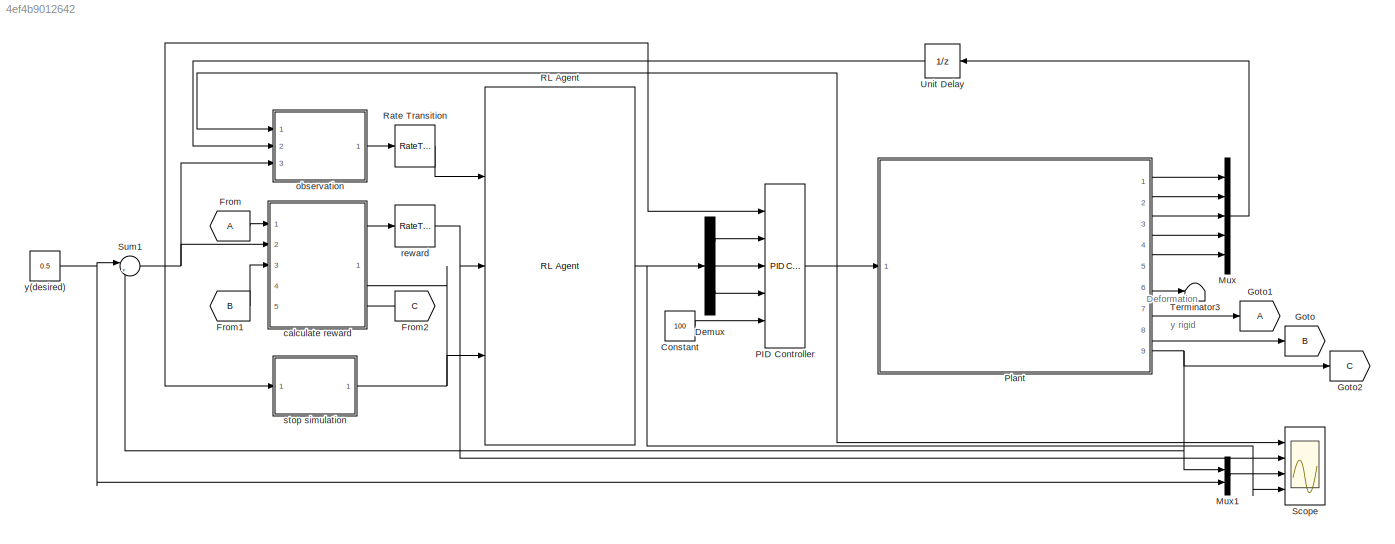
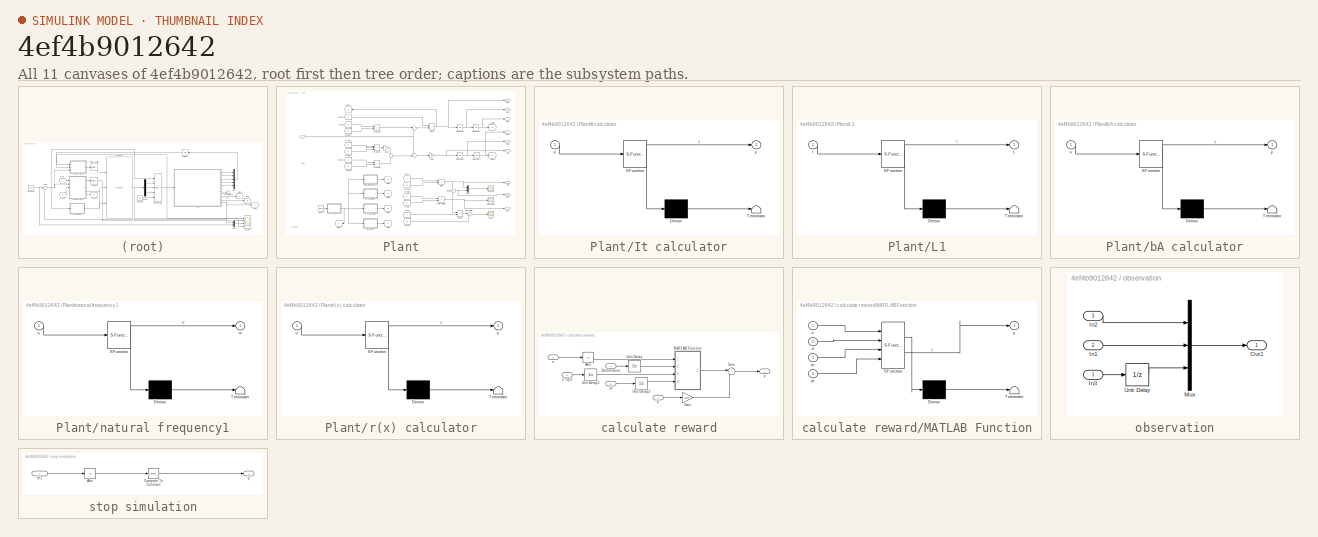
[diagram: thumbnail index - all 11 canvases of the model, root first then tree order]
MODEL slx_4ef4b9012642
KIND model
CONFIG AbsTol = auto
CONFIG EnableMultiTasking = off
CONFIG FixedStep = 0.001
CONFIG InitFcn = ro = 0.1 ; \n\nKu = 9;\nTu = 4;\nKpmin = 0.32*Ku;\nKpmax = 0.6*Ku;\nKdmin = 0.08*Ku*Tu;\nKdmax = 0.15*Ku*Tu;
CONFIG MaxStep = 0.001
CONFIG MinStep = auto
CONFIG RelTol = 1e-3
CONFIG SampleTimeConstraint = Unconstrained
CONFIG SolverName = VariableStepAuto
CONFIG StartTime = 0.0
CONFIG StopTime = 10
BLOCK [Constant] Constant
  Value = 100
BLOCK [Demux] Demux
  Outputs = 3
  Ports = [1, 3]
BLOCK [From] From
BLOCK [From] From1
  GotoTag = B
BLOCK [From] From2
  GotoTag = C
  NameLocation = top
BLOCK [Goto] Goto
  GotoTag = B
BLOCK [Goto] Goto1
BLOCK [Goto] Goto2
  GotoTag = C
BLOCK [Mux] Mux
  DisplayOption = bar
  Inputs = 5
  Ports = [5, 1]
BLOCK [Mux] Mux1
  DisplayOption = bar
  Inputs = 2
  Ports = [2, 1]
BLOCK [Reference] PID Controller  REF=slpidlib/PID Controller
  Ports = [5, 1]
  SourceBlock = slpidlib/PID Controller
  SourceProductBaseCode = SL
  SourceType = PID 1dof
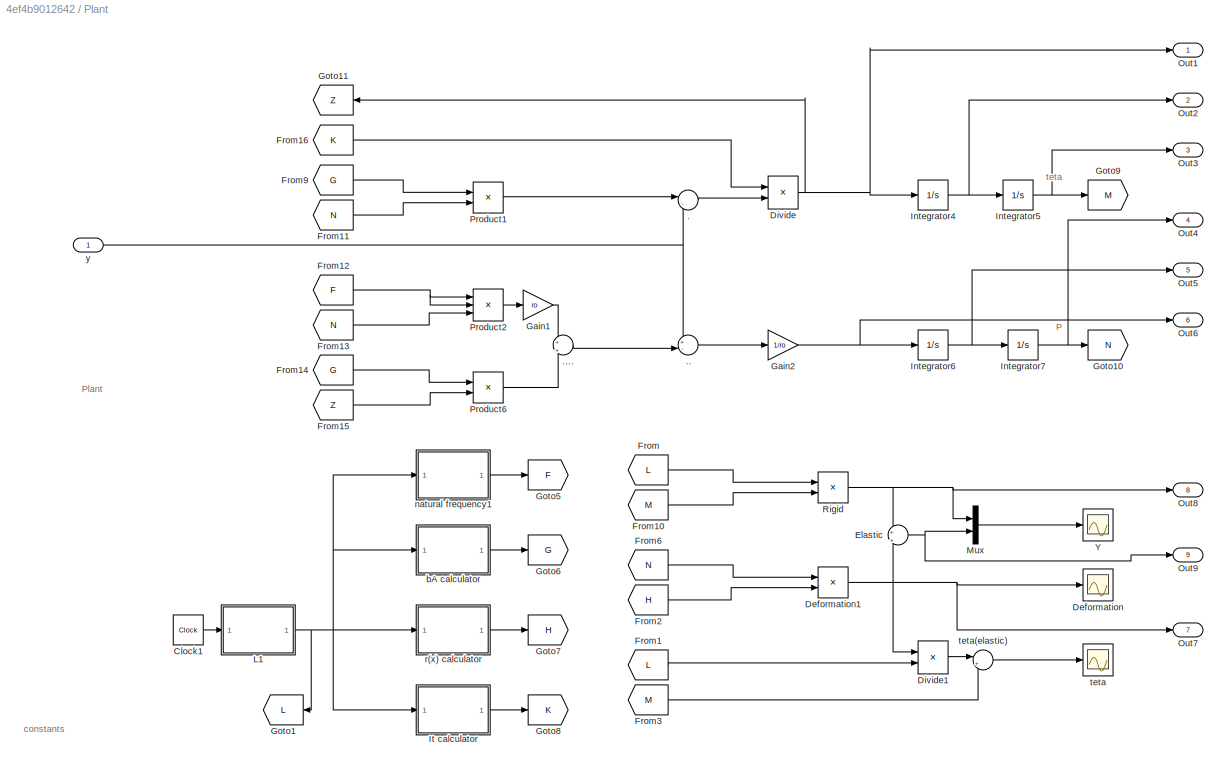
BLOCK [SubSystem] Plant
  Ports = [1, 9]
  RequestExecContextInheritance = off
BLOCK [Sum] Plant/.
  Inputs = |-+
  Ports = [2, 1]
BLOCK [Sum] Plant/..
  Inputs = +-|
  Ports = [2, 1]
BLOCK [Sum] Plant/....
  Inputs = +|+
  Ports = [2, 1]
BLOCK [Clock] Plant/Clock1
  Decimation = 2
  DisplayTime = on
BLOCK [Scope] Plant/Deformation
  Floating = off
  NumInputPorts = 1
  Ports = [1]
  ScopeSpecificationString = Simulink.scopes.TimeScopeBlockCfg('CurrentConfiguration', extmgr.ConfigurationSet(extmgr.Configuration('Core','General UI',true),extmgr.Configuration('Core','Source UI',true),extmgr.Configuration('Sources','WiredSimulink',true),extmgr.Configuration('Visuals','Time Domain',true,'SerializedDisplays',{struct('MinYLimReal','-0.75331','MaxYLimReal','0.82141','YLabelReal','','MinYLimMag','0.00000','MaxY...<+1409ch>
BLOCK [Product] Plant/Deformation1
  Ports = [2, 1]
BLOCK [Product] Plant/Divide
  Inputs = /*
  Ports = [2, 1]
BLOCK [Product] Plant/Divide1
  Inputs = */
  Ports = [2, 1]
BLOCK [Sum] Plant/Elastic
  Inputs = +|+
  NameLocation = left
  Ports = [2, 1]
BLOCK [From] Plant/From
  GotoTag = L
BLOCK [From] Plant/From1
  GotoTag = L
BLOCK [From] Plant/From10
  GotoTag = M
BLOCK [From] Plant/From11
  GotoTag = N
BLOCK [From] Plant/From12
  GotoTag = F
BLOCK [From] Plant/From13
  GotoTag = N
BLOCK [From] Plant/From14
  GotoTag = G
BLOCK [From] Plant/From15
  GotoTag = Z
BLOCK [From] Plant/From16
  GotoTag = K
BLOCK [From] Plant/From2
  GotoTag = H
BLOCK [From] Plant/From3
  GotoTag = M
BLOCK [From] Plant/From6
  GotoTag = N
BLOCK [From] Plant/From9
  GotoTag = G
BLOCK [Gain] Plant/Gain1
  Gain = ro
BLOCK [Gain] Plant/Gain2
  Gain = 1/ro
BLOCK [Goto] Plant/Goto1
  GotoTag = L
  NameLocation = top
BLOCK [Goto] Plant/Goto10
  GotoTag = N
BLOCK [Goto] Plant/Goto11
  GotoTag = Z
  NameLocation = top
BLOCK [Goto] Plant/Goto5
  GotoTag = F
BLOCK [Goto] Plant/Goto6
  GotoTag = G
BLOCK [Goto] Plant/Goto7
  GotoTag = H
BLOCK [Goto] Plant/Goto8
  GotoTag = K
BLOCK [Goto] Plant/Goto9
  GotoTag = M
BLOCK [Integrator] Plant/Integrator4
  Ports = [1, 1]
BLOCK [Integrator] Plant/Integrator5
  Ports = [1, 1]
BLOCK [Integrator] Plant/Integrator6
  Ports = [1, 1]
BLOCK [Integrator] Plant/Integrator7
  Ports = [1, 1]
BLOCK [SubSystem] Plant/It calculator
  ErrorFcn = Stateflow.Translate.translate
  PermitHierarchicalResolution = ExplicitOnly
  Ports = [1, 1]
  RequestExecContextInheritance = off
  SFBlockType = MATLAB Function
  TreatAsAtomicUnit = on
BLOCK [Demux] Plant/It calculator/ Demux 
  Outputs = 1
  Ports = [1, 1]
BLOCK [S-Function] Plant/It calculator/ SFunction 
  EnableBusSupport = on
  FunctionName = sf_sfun
  PortCounts = [1 2]
  Ports = [1, 2]
  SFcnIsStateOwnerBlock = off
  SFunctionDeploymentMode = off
  Tag = Stateflow S-Function 5
BLOCK [Terminator] Plant/It calculator/ Terminator 
BLOCK [Inport] Plant/It calculator/u
BLOCK [Outport] Plant/It calculator/y
BLOCK [SubSystem] Plant/L1
  ErrorFcn = Stateflow.Translate.translate
  PermitHierarchicalResolution = ExplicitOnly
  Ports = [1, 1]
  RequestExecContextInheritance = off
  SFBlockType = MATLAB Function
  TreatAsAtomicUnit = on
BLOCK [Demux] Plant/L1/ Demux 
  Outputs = 1
  Ports = [1, 1]
BLOCK [S-Function] Plant/L1/ SFunction 
  EnableBusSupport = on
  FunctionName = sf_sfun
  PortCounts = [1 2]
  Ports = [1, 2]
  SFcnIsStateOwnerBlock = off
  SFunctionDeploymentMode = off
  Tag = Stateflow S-Function 6
BLOCK [Terminator] Plant/L1/ Terminator 
BLOCK [Outport] Plant/L1/L
BLOCK [Inport] Plant/L1/t
BLOCK [Mux] Plant/Mux
  DisplayOption = bar
  Inputs = 2
  Ports = [2, 1]
BLOCK [Outport] Plant/Out1
BLOCK [Outport] Plant/Out2
  Port = 2
BLOCK [Outport] Plant/Out3
  Port = 3
BLOCK [Outport] Plant/Out4
  Port = 4
BLOCK [Outport] Plant/Out5
  Port = 5
BLOCK [Outport] Plant/Out6
  Port = 6
BLOCK [Outport] Plant/Out7
  Port = 7
BLOCK [Outport] Plant/Out8
  Port = 8
BLOCK [Outport] Plant/Out9
  Port = 9
BLOCK [Product] Plant/Product1
  Ports = [2, 1]
BLOCK [Product] Plant/Product2
  Inputs = 3
  Ports = [3, 1]
BLOCK [Product] Plant/Product6
  Ports = [2, 1]
BLOCK [Product] Plant/Rigid
  Ports = [2, 1]
BLOCK [Scope] Plant/Y
  Floating = off
  NumInputPorts = 1
  Ports = [1]
  ScopeSpecificationString = Simulink.scopes.TimeScopeBlockCfg('CurrentConfiguration', extmgr.ConfigurationSet(extmgr.Configuration('Core','General UI',true),extmgr.Configuration('Core','Source UI',true),extmgr.Configuration('Sources','WiredSimulink',true,'DataLoggingVariableName','ScopeData1'),extmgr.Configuration('Visuals','Time Domain',true,'SerializedDisplays',{struct('MinYLimReal','-0.25711','MaxYLimReal','1.56994','YLab...<+1450ch>
BLOCK [SubSystem] Plant/bA calculator
  ErrorFcn = Stateflow.Translate.translate
  PermitHierarchicalResolution = ExplicitOnly
  Ports = [1, 1]
  RequestExecContextInheritance = off
  SFBlockType = MATLAB Function
  TreatAsAtomicUnit = on
BLOCK [Demux] Plant/bA calculator/ Demux 
  Outputs = 1
  Ports = [1, 1]
BLOCK [S-Function] Plant/bA calculator/ SFunction 
  EnableBusSupport = on
  FunctionName = sf_sfun
  PortCounts = [1 2]
  Ports = [1, 2]
  SFcnIsStateOwnerBlock = off
  SFunctionDeploymentMode = off
  Tag = Stateflow S-Function 7
BLOCK [Terminator] Plant/bA calculator/ Terminator 
BLOCK [Inport] Plant/bA calculator/u
BLOCK [Outport] Plant/bA calculator/y
BLOCK [SubSystem] Plant/natural frequency1
  ErrorFcn = Stateflow.Translate.translate
  PermitHierarchicalResolution = ExplicitOnly
  Ports = [1, 1]
  RequestExecContextInheritance = off
  SFBlockType = MATLAB Function
  TreatAsAtomicUnit = on
BLOCK [Demux] Plant/natural frequency1/ Demux 
  Outputs = 1
  Ports = [1, 1]
BLOCK [S-Function] Plant/natural frequency1/ SFunction 
  EnableBusSupport = on
  FunctionName = sf_sfun
  PortCounts = [1 2]
  Ports = [1, 2]
  SFcnIsStateOwnerBlock = off
  SFunctionDeploymentMode = off
  Tag = Stateflow S-Function 8
BLOCK [Terminator] Plant/natural frequency1/ Terminator 
BLOCK [Inport] Plant/natural frequency1/u
BLOCK [Outport] Plant/natural frequency1/w
BLOCK [SubSystem] Plant/r(x) calculator
  ErrorFcn = Stateflow.Translate.translate
  PermitHierarchicalResolution = ExplicitOnly
  Ports = [1, 1]
  RequestExecContextInheritance = off
  SFBlockType = MATLAB Function
  TreatAsAtomicUnit = on
BLOCK [Demux] Plant/r(x) calculator/ Demux 
  Outputs = 1
  Ports = [1, 1]
BLOCK [S-Function] Plant/r(x) calculator/ SFunction 
  EnableBusSupport = on
  FunctionName = sf_sfun
  PortCounts = [1 2]
  Ports = [1, 2]
  SFcnIsStateOwnerBlock = off
  SFunctionDeploymentMode = off
  Tag = Stateflow S-Function 10
BLOCK [Terminator] Plant/r(x) calculator/ Terminator 
BLOCK [Inport] Plant/r(x) calculator/u
BLOCK [Outport] Plant/r(x) calculator/y
BLOCK [Scope] Plant/teta
  Floating = off
  NumInputPorts = 1
  Ports = [1]
  ScopeSpecificationString = Simulink.scopes.TimeScopeBlockCfg('CurrentConfiguration', extmgr.ConfigurationSet(extmgr.Configuration('Core','General UI',true),extmgr.Configuration('Core','Source UI',true),extmgr.Configuration('Sources','WiredSimulink',true,'DataLoggingVariableName','ScopeData1'),extmgr.Configuration('Visuals','Time Domain',true,'SerializedDisplays',{struct('MinYLimReal','-0.40864','MaxYLimReal','2.92063','YLab...<+1372ch>
BLOCK [Sum] Plant/teta(elastic)
  Inputs = |++
  NameLocation = top
  Ports = [2, 1]
BLOCK [Inport] Plant/y
BLOCK [Reference] RL Agent  REF=rllib/RL Agent
  Ports = [3, 1]
  SourceBlock = rllib/RL Agent
  SourceProductBaseCode = RL
  SourceType = RL Agent
BLOCK [RateTransition] Rate Transition
BLOCK [Scope] Scope
  Floating = off
  NumInputPorts = 4
  Ports = [4]
  ScopeSpecificationString = Simulink.scopes.TimeScopeBlockCfg('CurrentConfiguration', extmgr.ConfigurationSet(extmgr.Configuration('Core','General UI',true),extmgr.Configuration('Core','Source UI',true),extmgr.Configuration('Sources','WiredSimulink',true,'DataLoggingVariableName','ScopeData1'),extmgr.Configuration('Visuals','Time Domain',true,'SerializedDisplays',{struct('MinYLimReal','-140.44115','MaxYLimReal','123.22673','...<+3524ch>
BLOCK [Sum] Sum1
  Inputs = |+-
  Ports = [2, 1]
BLOCK [Terminator] Terminator3
BLOCK [UnitDelay] Unit Delay
  HasFrameUpgradeWarning = on
  NameLocation = top
  SampleTime = -1
BLOCK [SubSystem] calculate reward
  PortSchema = {"entries":[{"content":{"sides":[{"content":{"connectorIds":["In1","In2","In3"]},"type":"ConnectorPlacement.EquallySpacedRectSide","uuid":"6d7fc479-8b54-4eda-9f6d-c70e7c76a1e2"},{"content":{"connectorIds":["Out1","In4","In5"],"side":"RIGHT"},"type":"ConnectorPlacement.EquallySpacedRectSide","uuid":"b691a02b-c792-4e07-977e-e9bf68ac6416"},{"content":{"connectorIds":[],"side":"TOP"},"type":"Connector...<+264ch>
  Ports = [5, 1]
  RequestExecContextInheritance = off
BLOCK [Abs] calculate reward/Abs
  SaturateOnIntegerOverflow = off
BLOCK [Inport] calculate reward/Deformation
BLOCK [Gain] calculate reward/Gain
  Gain = -10000
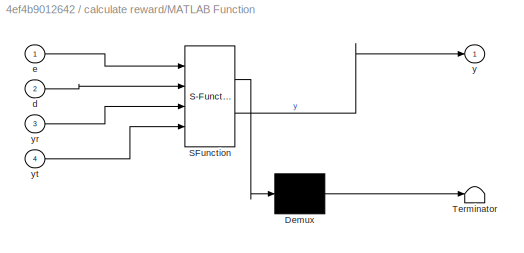
BLOCK [SubSystem] calculate reward/MATLAB Function
  ErrorFcn = Stateflow.Translate.translate
  PermitHierarchicalResolution = ExplicitOnly
  Ports = [4, 1]
  RequestExecContextInheritance = off
  SFBlockType = MATLAB Function
  TreatAsAtomicUnit = on
BLOCK [Demux] calculate reward/MATLAB Function/ Demux 
  Outputs = 1
  Ports = [1, 1]
BLOCK [S-Function] calculate reward/MATLAB Function/ SFunction 
  EnableBusSupport = on
  FunctionName = sf_sfun
  PortCounts = [4 2]
  Ports = [4, 2]
  SFcnIsStateOwnerBlock = off
  SFunctionDeploymentMode = off
  Tag = Stateflow S-Function 2
BLOCK [Terminator] calculate reward/MATLAB Function/ Terminator 
BLOCK [Inport] calculate reward/MATLAB Function/d
  Port = 2
BLOCK [Inport] calculate reward/MATLAB Function/e
BLOCK [Outport] calculate reward/MATLAB Function/y
BLOCK [Inport] calculate reward/MATLAB Function/yr
  Port = 3
BLOCK [Inport] calculate reward/MATLAB Function/yt
  Port = 4
BLOCK [Sum] calculate reward/Sum
  Inputs = |++
  Ports = [2, 1]
BLOCK [UnitDelay] calculate reward/Unit Delay
  HasFrameUpgradeWarning = on
  SampleTime = -1
BLOCK [UnitDelay] calculate reward/Unit Delay1
  HasFrameUpgradeWarning = on
  SampleTime = -1
BLOCK [UnitDelay] calculate reward/Unit Delay2
  HasFrameUpgradeWarning = on
  SampleTime = -1
BLOCK [Inport] calculate reward/e
  Port = 2
BLOCK [Inport] calculate reward/k
  Port = 4
BLOCK [Outport] calculate reward/y
BLOCK [Inport] calculate reward/y rigid
  Port = 3
BLOCK [Inport] calculate reward/yt
  Port = 5
BLOCK [SubSystem] observation
  Ports = [3, 1]
  RequestExecContextInheritance = off
BLOCK [Inport] observation/In1
  Port = 2
BLOCK [Inport] observation/In2
  Port = 3
BLOCK [Inport] observation/In3
BLOCK [Mux] observation/Mux
  DisplayOption = bar
  Inputs = 3
  Ports = [3, 1]
BLOCK [Outport] observation/Out1
BLOCK [UnitDelay] observation/Unit Delay
  HasFrameUpgradeWarning = on
  SampleTime = -1
BLOCK [RateTransition] reward
BLOCK [SubSystem] stop simulation
  Ports = [1, 1]
  RequestExecContextInheritance = off
BLOCK [Abs] stop simulation/Abs
  SaturateOnIntegerOverflow = off
BLOCK [Reference] stop simulation/Compare To Constant  REF=simulink/Logic and Bit
Operations/Compare
To Constant
  Ports = [1, 1]
  SourceBlock = simulink/Logic and Bit\nOperations/Compare\nTo Constant
  SourceProductBaseCode = SL
  SourceType = Compare To Constant
BLOCK [Inport] stop simulation/In1
BLOCK [Outport] stop simulation/y
BLOCK [Constant] y(desired)
  Value = 0.5
ANNOTATION (root): Deformation
ANNOTATION (root): y rigid
ANNOTATION Plant: Plant
ANNOTATION Plant: constants
ANNOTATION Plant: P
ANNOTATION Plant: teta
LINE Constant:1 -> PID Controller:5
LINE Demux:1 -> PID Controller:2
LINE Demux:2 -> PID Controller:3
LINE Demux:3 -> PID Controller:4
LINE From1:1 -> calculate reward:3
LINE From2:1 -> calculate reward:5
LINE From:1 -> calculate reward:1
LINE Mux1:1 -> Scope:3
LINE Mux:1 -> Unit Delay:1
NET PID Controller:1 -> Plant:1, Scope:1, observation:1
LINE Plant/....:1 -> Plant/..:2
LINE Plant/..:1 -> Plant/Gain2:1
LINE Plant/.:1 -> Plant/Divide:2
LINE Plant/Clock1:1 -> Plant/L1:1
NET Plant/Deformation1:1 -> Plant/Deformation:1, Plant/Divide1:1, Plant/Elastic:2, Plant/Out7:1
LINE Plant/Divide1:1 -> Plant/teta(elastic):1
NET Plant/Divide:1 -> Plant/Goto11:1, Plant/Integrator4:1, Plant/Out1:1
NET Plant/Elastic:1 -> Plant/Mux:2, Plant/Out9:1
LINE Plant/From10:1 -> Plant/Rigid:2
LINE Plant/From11:1 -> Plant/Product1:2
NET Plant/From12:1 -> Plant/Product2:1, Plant/Product2:2
LINE Plant/From13:1 -> Plant/Product2:3
LINE Plant/From14:1 -> Plant/Product6:1
LINE Plant/From15:1 -> Plant/Product6:2
LINE Plant/From16:1 -> Plant/Divide:1
LINE Plant/From1:1 -> Plant/Divide1:2
LINE Plant/From2:1 -> Plant/Deformation1:2
LINE Plant/From3:1 -> Plant/teta(elastic):2
LINE Plant/From6:1 -> Plant/Deformation1:1
LINE Plant/From9:1 -> Plant/Product1:1
LINE Plant/From:1 -> Plant/Rigid:1
LINE Plant/Gain1:1 -> Plant/....:1
NET Plant/Gain2:1 -> Plant/Integrator6:1, Plant/Out6:1
NET Plant/Integrator4:1 -> Plant/Integrator5:1, Plant/Out2:1
NET Plant/Integrator5:1 -> Plant/Goto9:1, Plant/Out3:1
NET Plant/Integrator6:1 -> Plant/Integrator7:1, Plant/Out5:1
NET Plant/Integrator7:1 -> Plant/Goto10:1, Plant/Out4:1
LINE Plant/It calculator:1 -> Plant/Goto8:1
NET Plant/L1:1 -> Plant/Goto1:1, Plant/It calculator:1, Plant/bA calculator:1, Plant/natural frequency1:1, Plant/r(x) calculator:1
LINE Plant/Mux:1 -> Plant/Y:1
LINE Plant/Product1:1 -> Plant/.:1
LINE Plant/Product2:1 -> Plant/Gain1:1
LINE Plant/Product6:1 -> Plant/....:2
NET Plant/Rigid:1 -> Plant/Elastic:1, Plant/Mux:1, Plant/Out8:1
LINE Plant/bA calculator:1 -> Plant/Goto6:1
LINE Plant/natural frequency1:1 -> Plant/Goto5:1
LINE Plant/r(x) calculator:1 -> Plant/Goto7:1
LINE Plant/teta(elastic):1 -> Plant/teta:1
NET Plant/y:1 -> Plant/..:1, Plant/.:2
LINE Plant:1 -> Mux:1
LINE Plant:2 -> Mux:2
LINE Plant:3 -> Mux:3
LINE Plant:4 -> Mux:4
LINE Plant:5 -> Mux:5
LINE Plant:6 -> Terminator3:1
LINE Plant:7 -> Goto1:1
LINE Plant:8 -> Goto:1
NET Plant:9 -> Goto2:1, Mux1:1, Sum1:2
NET RL Agent:1 -> Demux:1, Scope:4
LINE Rate Transition:1 -> RL Agent:1
NET Sum1:1 -> PID Controller:1, calculate reward:2, observation:3, stop simulation:1
LINE Unit Delay:1 -> observation:2
LINE calculate reward/Abs:1 -> calculate reward/MATLAB Function:1
LINE calculate reward/Deformation:1 -> calculate reward/Unit Delay:1
LINE calculate reward/Gain:1 -> calculate reward/Sum:2
LINE calculate reward/MATLAB Function:1 -> calculate reward/Sum:1
LINE calculate reward/Sum:1 -> calculate reward/y:1
LINE calculate reward/Unit Delay1:1 -> calculate reward/MATLAB Function:3
LINE calculate reward/Unit Delay2:1 -> calculate reward/MATLAB Function:4
LINE calculate reward/Unit Delay:1 -> calculate reward/MATLAB Function:2
LINE calculate reward/e:1 -> calculate reward/Abs:1
LINE calculate reward/k:1 -> calculate reward/Gain:1
LINE calculate reward/y rigid:1 -> calculate reward/Unit Delay1:1
LINE calculate reward/yt:1 -> calculate reward/Unit Delay2:1
LINE calculate reward:1 -> reward:1
LINE observation/In1:1 -> observation/Mux:2
LINE observation/In2:1 -> observation/Mux:1
LINE observation/In3:1 -> observation/Unit Delay:1
LINE observation/Mux:1 -> observation/Out1:1
LINE observation/Unit Delay:1 -> observation/Mux:3
LINE observation:1 -> Rate Transition:1
NET reward:1 -> RL Agent:2, Scope:2
LINE stop simulation/Abs:1 -> stop simulation/Compare To Constant:1
LINE stop simulation/Compare To Constant:1 -> stop simulation/y:1
LINE stop simulation/In1:1 -> stop simulation/Abs:1
NET stop simulation:1 -> RL Agent:3, calculate reward:4
NET y(desired):1 -> Mux1:2, Sum1:1
note: NET lines group one-source signal fan-out (src -> all destinations, sorted); 1:1 wires keep LINE
CHART calculate reward/MATLAB Function states=1 transitions=1
  STATE_LABEL 'eML_blk_kernel()'
  STATE_LABEL 'SCRIPT:\nfunction y = fcn(e,d,yr,yt)\n\nw = 0 ; \nif e < 0.5 \n    w = 1 ; \nend\nif e < 0.05 \n    w = 10 ; \nend\n\n\nr = w - 5*(yr - 0.5)^2 - 5*abs(d) ;    \n\ny = r;\n'
CHART Plant/It calculator states=1 transitions=1
  STATE_LABEL 'eML_blk_kernel()'
  STATE_LABEL 'SCRIPT:\nfunction y = It_caculator(u) \n\nL = u ; \nIh = 0.5 ; %kgm^2 \nro = 0.1 ; %kg/m \nIt = Ih + (ro*L^3)/3 ; \n\n\ny = It  ; \n'
CHART Plant/L1 states=1 transitions=1
  STATE_LABEL 'eML_blk_kernel()'
  STATE_LABEL 'SCRIPT:\nfunction L = fcn(t)\n\nLL = 1 ; \nL = LL;\n'
CHART Plant/bA calculator states=1 transitions=1
  STATE_LABEL 'eML_blk_kernel()'
  STATE_LABEL 'SCRIPT:\nfunction y = bA_caculator(u) \n\nL = u ; \nro = 0.1 ; %kg/m \na = (L)^(-0.5) ; \nA = 1.8751 ; \nb = (cosh(A)+cos(A))/(sinh(A)+sin(A)) ;  \n\nx = 0:0.001:L ; \n\nbb = ro.*x.*a.*(cosh(A.*x./L) - cos(A.*x./L) + b*(sin(A.*x./L) - sinh(A.*x./L))) ;\n\nbA = trapz(x,bb);\n\ny = bA  ; \n'
CHART Plant/natural frequency1 states=1 transitions=1
  STATE_LABEL 'eML_blk_kernel()'
  STATE_LABEL 'SCRIPT:\nfunction w = fcn(u)\n\nL = u ; \nro = 0.1 ; %kg/m \nEI = 2.0 ; %Nm^2 ; \nA = 1.8751 ; \n\nw = (A^2/L^2)*((EI)/(ro))^0.5 ; \n\n'
CHART Plant/r(x) calculator states=1 transitions=1
  STATE_LABEL 'eML_blk_kernel()'
  STATE_LABEL 'SCRIPT:\nfunction y = r_caculator(u) \n\nL = u ; \na = (L)^(-0.5) ; \nA = 1.8751 ; \nb = (cosh(A)+cos(A))/(sinh(A)+sin(A))  ; \n\nr = a*(cosh(A) - cos(A) + b*(sin(A) - sinh(A))) ;\n\ny = r  ; \n'
CHART  states=0 transitions=0
CHART  states=0 transitions=0
CHART  states=0 transitions=0
CHART  states=0 transitions=0
CHART  states=0 transitions=0
CHART  states=0 transitions=0
